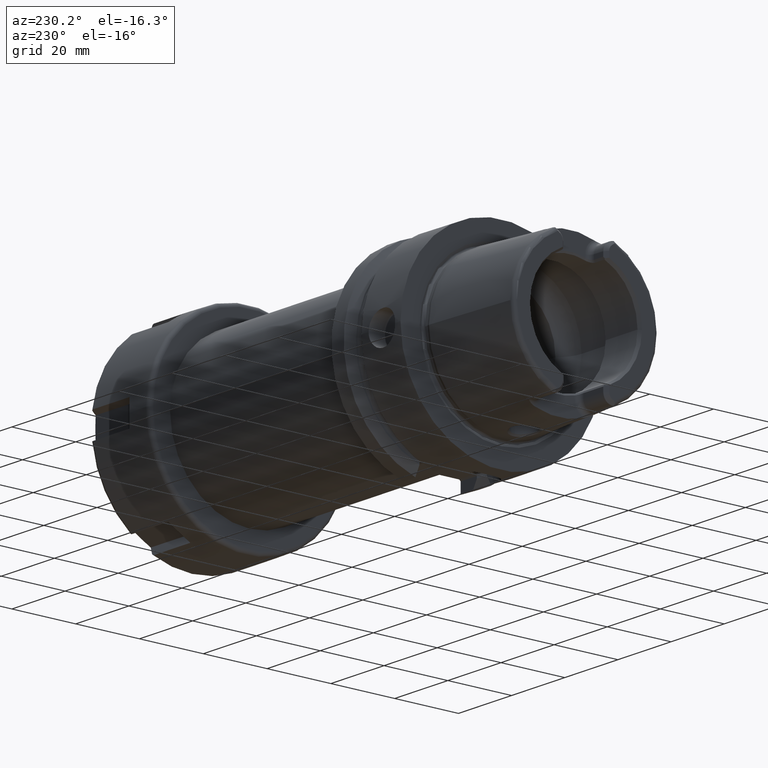
[diagram: clean part render]
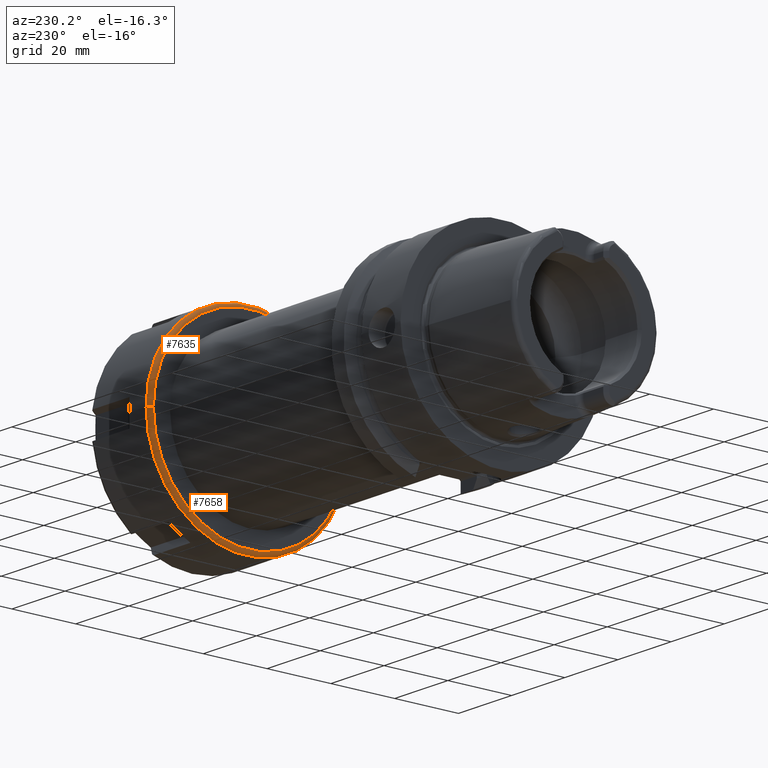
[diagram: same view with one multi-face feature highlighted, each face labeled with its STEP entity id]
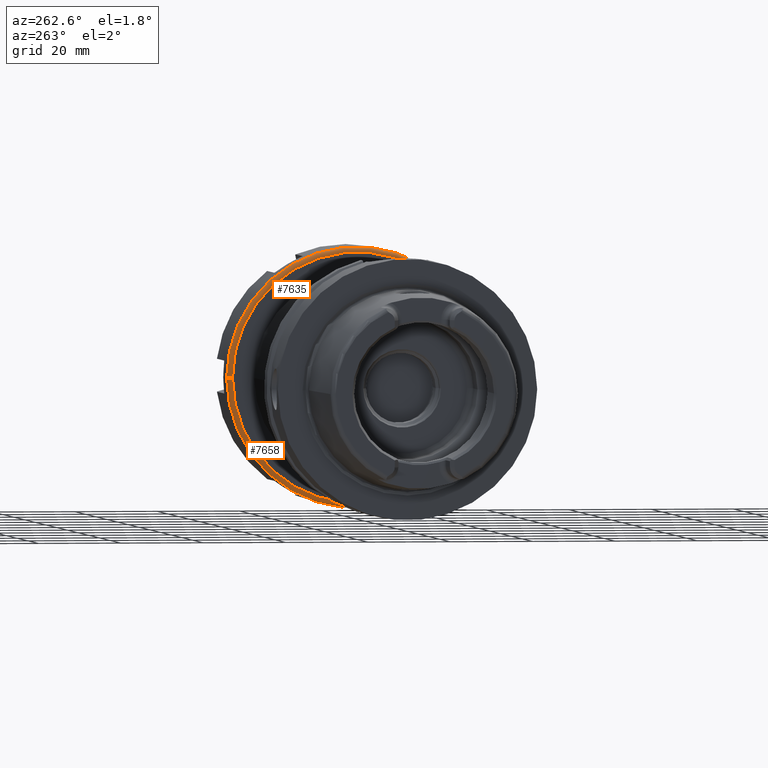
[diagram: same view with one multi-face feature highlighted, each face labeled with its STEP entity id]
A machine part, auxiliary view. The highlighted faces form ONE feature: a constant-radius fillet chain: 2 tangent blend faces with common blend radius 1.25 mm. The faces share edges in the B-rep.
A second angle (auxiliary view) of the same feature is appended — it is thin or edge-on in the first view.
Their STEP definitions:
[1] entity #7635 (Torus):
#6840=CARTESIAN_POINT('',(1.25E0,0.E0,0.E0));
#6841=DIRECTION('',(-1.E0,0.E0,0.E0));
#6842=DIRECTION('',(0.E0,-1.E0,0.E0));
#6843=AXIS2_PLACEMENT_3D('',#6840,#6841,#6842);
#6895=CARTESIAN_POINT('',(1.25E0,-3.024999999997E1,-3.128053371881E-14));
#6896=DIRECTION('',(0.E0,0.E0,1.E0));
#6897=DIRECTION('',(-1.E0,0.E0,0.E0));
#6898=AXIS2_PLACEMENT_3D('',#6895,#6896,#6897);
#6905=CARTESIAN_POINT('',(0.E0,0.E0,0.E0));
#6906=DIRECTION('',(-1.E0,0.E0,0.E0));
#6907=DIRECTION('',(0.E0,-1.E0,0.E0));
#6908=AXIS2_PLACEMENT_3D('',#6905,#6906,#6907);
#6910=CARTESIAN_POINT('',(1.25E0,3.024999999997E1,0.E0));
#6911=DIRECTION('',(0.E0,0.E0,-1.E0));
#6912=DIRECTION('',(-1.E0,0.E0,0.E0));
#6913=AXIS2_PLACEMENT_3D('',#6910,#6911,#6912);
#7063=CARTESIAN_POINT('',(0.E0,3.024999999997E1,1.713825516537E-14));
#7064=CARTESIAN_POINT('',(1.719369494877E-14,-3.024999999997E1,
-3.427651033073E-14));
#7065=VERTEX_POINT('',#7063);
#7066=VERTEX_POINT('',#7064);
#7067=CARTESIAN_POINT('',(1.25E0,3.149999999997E1,1.784644752757E-14));
#7068=CARTESIAN_POINT('',(1.25E0,-3.149999999997E1,-2.170408494488E-14));
#7069=VERTEX_POINT('',#7067);
#7070=VERTEX_POINT('',#7068);
#7621=CARTESIAN_POINT('',(1.25E0,0.E0,0.E0));
#7622=DIRECTION('',(1.E0,0.E0,0.E0));
#7623=DIRECTION('',(0.E0,-9.999759566163E-1,-6.934420614304E-3));
#7624=AXIS2_PLACEMENT_3D('',#7621,#7622,#7623);
#7625=TOROIDAL_SURFACE('',#7624,3.024999999997E1,1.25E0);
#7627=ORIENTED_EDGE('',*,*,#7626,.T.);
#7629=ORIENTED_EDGE('',*,*,#7628,.T.);
#7630=ORIENTED_EDGE('',*,*,#7595,.F.);
#7632=ORIENTED_EDGE('',*,*,#7631,.F.);
#7633=EDGE_LOOP('',(#7627,#7629,#7630,#7632));
#7634=FACE_OUTER_BOUND('',#7633,.F.);
#7635=ADVANCED_FACE('',(#7634),#7625,.T.);
#6844=CIRCLE('',#6843,3.149999999997E1);
#6899=CIRCLE('',#6898,1.25E0);
#6909=CIRCLE('',#6908,3.024999999997E1);
#6914=CIRCLE('',#6913,1.25E0);
#7595=EDGE_CURVE('',#7070,#7069,#6844,.T.);
#7626=EDGE_CURVE('',#7066,#7065,#6909,.T.);
#7628=EDGE_CURVE('',#7065,#7069,#6914,.T.);
#7631=EDGE_CURVE('',#7066,#7070,#6899,.T.);
[2] entity #7658 (Torus):
#6498=CARTESIAN_POINT('',(1.25E0,0.E0,0.E0));
#6499=DIRECTION('',(-1.E0,0.E0,0.E0));
#6500=DIRECTION('',(0.E0,1.E0,0.E0));
#6501=AXIS2_PLACEMENT_3D('',#6498,#6499,#6500);
#6895=CARTESIAN_POINT('',(1.25E0,-3.024999999997E1,-3.128053371881E-14));
#6896=DIRECTION('',(0.E0,0.E0,1.E0));
#6897=DIRECTION('',(-1.E0,0.E0,0.E0));
#6898=AXIS2_PLACEMENT_3D('',#6895,#6896,#6897);
#6900=CARTESIAN_POINT('',(0.E0,0.E0,0.E0));
#6901=DIRECTION('',(-1.E0,0.E0,0.E0));
#6902=DIRECTION('',(0.E0,1.E0,0.E0));
#6903=AXIS2_PLACEMENT_3D('',#6900,#6901,#6902);
#6910=CARTESIAN_POINT('',(1.25E0,3.024999999997E1,0.E0));
#6911=DIRECTION('',(0.E0,0.E0,-1.E0));
#6912=DIRECTION('',(-1.E0,0.E0,0.E0));
#6913=AXIS2_PLACEMENT_3D('',#6910,#6911,#6912);
#7063=CARTESIAN_POINT('',(0.E0,3.024999999997E1,1.713825516537E-14));
#7064=CARTESIAN_POINT('',(1.719369494877E-14,-3.024999999997E1,
-3.427651033073E-14));
#7065=VERTEX_POINT('',#7063);
#7066=VERTEX_POINT('',#7064);
#7067=CARTESIAN_POINT('',(1.25E0,3.149999999997E1,1.784644752757E-14));
#7068=CARTESIAN_POINT('',(1.25E0,-3.149999999997E1,-2.170408494488E-14));
#7069=VERTEX_POINT('',#7067);
#7070=VERTEX_POINT('',#7068);
#7647=CARTESIAN_POINT('',(1.25E0,0.E0,0.E0));
#7648=DIRECTION('',(1.E0,0.E0,0.E0));
#7649=DIRECTION('',(0.E0,9.999759566163E-1,6.934420614304E-3));
#7650=AXIS2_PLACEMENT_3D('',#7647,#7648,#7649);
#7651=TOROIDAL_SURFACE('',#7650,3.024999999997E1,1.25E0);
#7652=ORIENTED_EDGE('',*,*,#7641,.T.);
#7653=ORIENTED_EDGE('',*,*,#7631,.T.);
#7654=ORIENTED_EDGE('',*,*,#7304,.F.);
#7655=ORIENTED_EDGE('',*,*,#7628,.F.);
#7656=EDGE_LOOP('',(#7652,#7653,#7654,#7655));
#7657=FACE_OUTER_BOUND('',#7656,.F.);
#7658=ADVANCED_FACE('',(#7657),#7651,.T.);
#6502=CIRCLE('',#6501,3.149999999997E1);
#6899=CIRCLE('',#6898,1.25E0);
#6904=CIRCLE('',#6903,3.024999999997E1);
#6914=CIRCLE('',#6913,1.25E0);
#7304=EDGE_CURVE('',#7069,#7070,#6502,.T.);
#7628=EDGE_CURVE('',#7065,#7069,#6914,.T.);
#7631=EDGE_CURVE('',#7066,#7070,#6899,.T.);
#7641=EDGE_CURVE('',#7065,#7066,#6904,.T.);